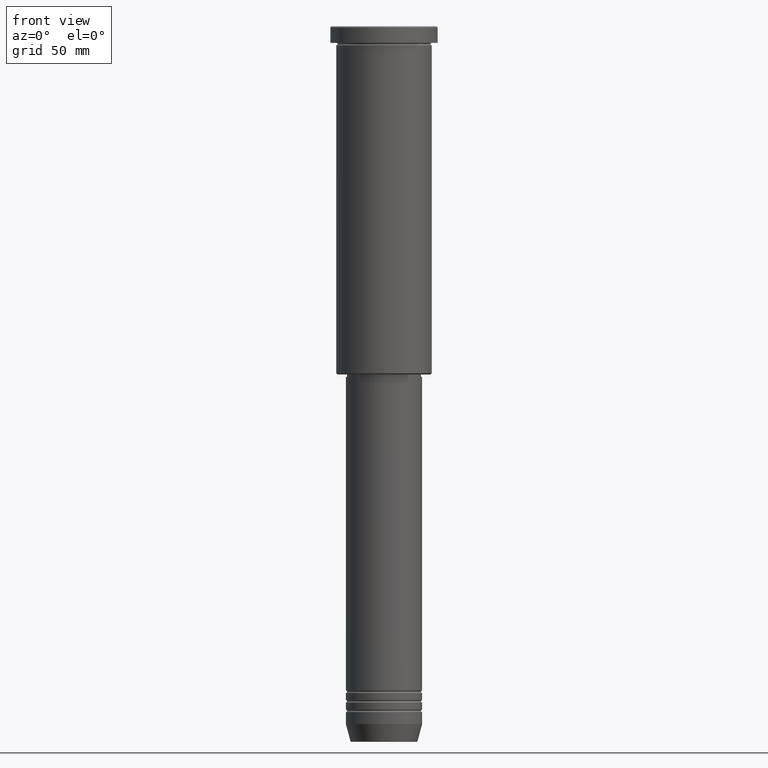
[diagram: clean part render]
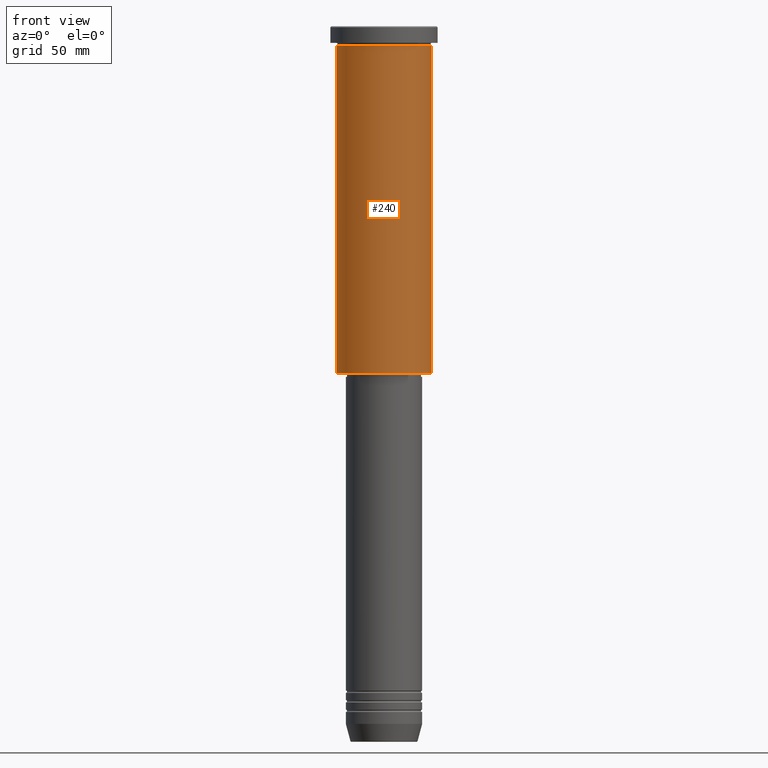
[diagram: same view with one face highlighted and labeled with its STEP entity id]
A machine part, front view. The second image highlights one B-rep face of the part: STEP entity #240.
In plain terms, the highlighted cylindrical surface (partial cylindrical patch) has radius 20 mm, axis along (-0, -0, 1).
Its self-contained STEP definition (entity closure, byte-faithful):
#1 = CARTESIAN_POINT ( 'NONE',  ( -20.00000000000000355, 2.449293598294706907E-15, -145.5000000000000853 ) ) ;
#12 = ORIENTED_EDGE ( 'NONE', *, *, #899, .T. ) ;
#29 = VERTEX_POINT ( 'NONE', #1161 ) ;
#33 = VERTEX_POINT ( 'NONE', #1094 ) ;
#46 = ORIENTED_EDGE ( 'NONE', *, *, #1178, .T. ) ;
#105 = DIRECTION ( 'NONE',  ( -0.000000000000000000, -0.000000000000000000, 1.000000000000000000 ) ) ;
#141 = DIRECTION ( 'NONE',  ( 1.000000000000000000, 0.000000000000000000, 0.000000000000000000 ) ) ;
#187 = AXIS2_PLACEMENT_3D ( 'NONE', #263, #717, #241 ) ;
#195 = ORIENTED_EDGE ( 'NONE', *, *, #942, .F. ) ;
#218 = VECTOR ( 'NONE', #1063, 1000.000000000000000 ) ;
#233 = EDGE_LOOP ( 'NONE', ( #195, #46, #12, #561 ) ) ;
#240 = ADVANCED_FACE ( 'NONE', ( #615 ), #913, .T. ) ;
#241 = DIRECTION ( 'NONE',  ( 1.000000000000000000, 0.000000000000000000, 0.000000000000000000 ) ) ;
#263 = CARTESIAN_POINT ( 'NONE',  ( 0.000000000000000000, 0.000000000000000000, -7.999999999999994671 ) ) ;
#288 = CIRCLE ( 'NONE', #451, 20.00000000000000355 ) ;
#380 = VECTOR ( 'NONE', #1041, 1000.000000000000000 ) ;
#404 = CARTESIAN_POINT ( 'NONE',  ( 20.00000000000000355, 0.000000000000000000, 0.000000000000000000 ) ) ;
#451 = AXIS2_PLACEMENT_3D ( 'NONE', #481, #105, #653 ) ;
#481 = CARTESIAN_POINT ( 'NONE',  ( 0.000000000000000000, 0.000000000000000000, -145.5000000000000853 ) ) ;
#505 = CIRCLE ( 'NONE', #187, 20.00000000000000000 ) ;
#520 = VERTEX_POINT ( 'NONE', #650 ) ;
#533 = LINE ( 'NONE', #707, #218 ) ;
#534 = DIRECTION ( 'NONE',  ( -0.000000000000000000, -0.000000000000000000, 1.000000000000000000 ) ) ;
#561 = ORIENTED_EDGE ( 'NONE', *, *, #725, .F. ) ;
#615 = FACE_OUTER_BOUND ( 'NONE', #233, .T. ) ;
#650 = CARTESIAN_POINT ( 'NONE',  ( -20.00000000000000000, 2.449293598294706513E-15, -7.999999999999994671 ) ) ;
#653 = DIRECTION ( 'NONE',  ( -1.000000000000000000, 0.000000000000000000, 0.000000000000000000 ) ) ;
#707 = CARTESIAN_POINT ( 'NONE',  ( -20.00000000000000355, 2.449293598294706907E-15, 0.000000000000000000 ) ) ;
#717 = DIRECTION ( 'NONE',  ( -0.000000000000000000, -0.000000000000000000, 1.000000000000000000 ) ) ;
#725 = EDGE_CURVE ( 'NONE', #520, #29, #505, .T. ) ;
#752 = VERTEX_POINT ( 'NONE', #1 ) ;
#899 = EDGE_CURVE ( 'NONE', #33, #29, #1118, .T. ) ;
#913 = CYLINDRICAL_SURFACE ( 'NONE', #1125, 20.00000000000000355 ) ;
#942 = EDGE_CURVE ( 'NONE', #752, #520, #533, .T. ) ;
#982 = CARTESIAN_POINT ( 'NONE',  ( 0.000000000000000000, 0.000000000000000000, 0.000000000000000000 ) ) ;
#1041 = DIRECTION ( 'NONE',  ( -0.000000000000000000, -0.000000000000000000, 1.000000000000000000 ) ) ;
#1063 = DIRECTION ( 'NONE',  ( -0.000000000000000000, -0.000000000000000000, 1.000000000000000000 ) ) ;
#1094 = CARTESIAN_POINT ( 'NONE',  ( 20.00000000000000355, 0.000000000000000000, -145.5000000000000853 ) ) ;
#1118 = LINE ( 'NONE', #404, #380 ) ;
#1125 = AXIS2_PLACEMENT_3D ( 'NONE', #982, #534, #141 ) ;
#1161 = CARTESIAN_POINT ( 'NONE',  ( 20.00000000000000000, 0.000000000000000000, -7.999999999999994671 ) ) ;
#1178 = EDGE_CURVE ( 'NONE', #752, #33, #288, .T. ) ;